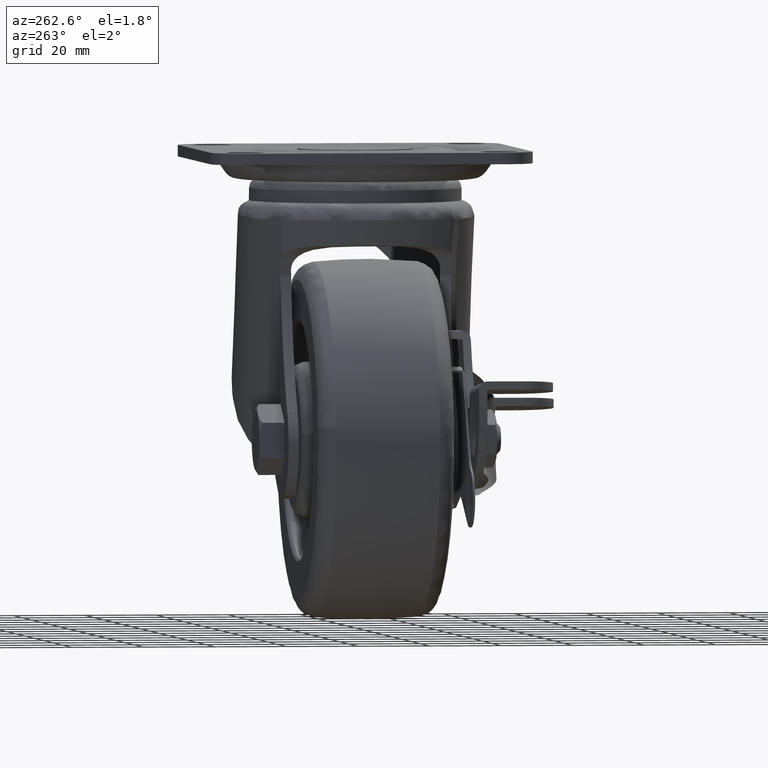
[diagram: clean part render]
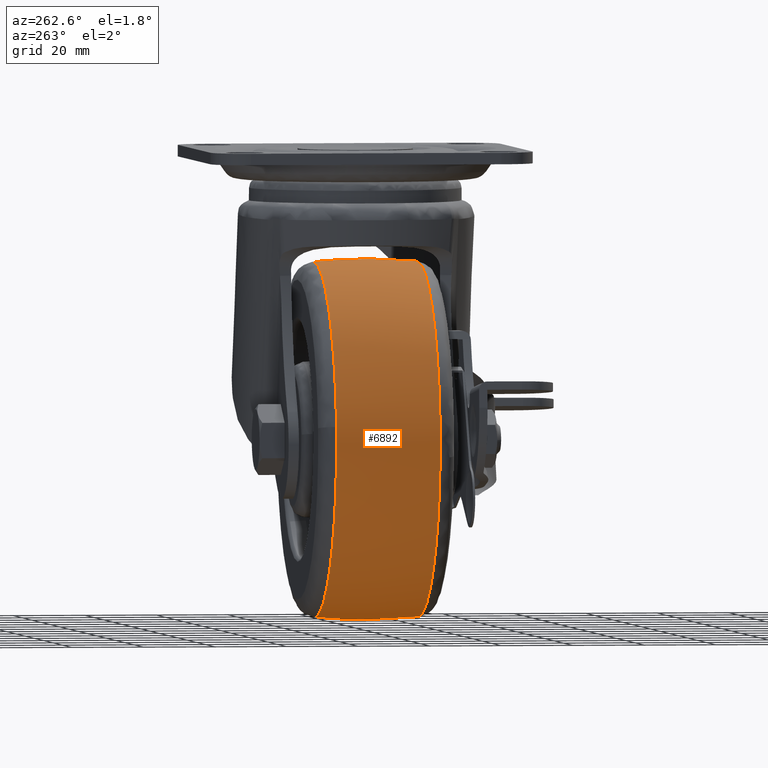
[diagram: same view with one face highlighted and labeled with its STEP entity id]
A machine part, auxiliary view. The second image highlights one B-rep face of the part: STEP entity #6892.
In plain terms, the highlighted face is a freeform B-spline surface patch.
Its self-contained STEP definition (entity closure, byte-faithful):
#6610=CARTESIAN_POINT('',(-71.159154287774825,-14.482748440469010,-83.713747448926227));
#6611=VERTEX_POINT('',#6610);
#6612=CARTESIAN_POINT('',(-22.0,-14.482756657642501,-129.299417237024500));
#6613=VERTEX_POINT('',#6612);
#6614=CARTESIAN_POINT('',(-71.159154287774825,-14.482748440469008,-83.713747448926227));
#6615=CARTESIAN_POINT('',(-67.715552138166373,-14.482752544622015,-129.299417264644350));
#6616=CARTESIAN_POINT('',(-22.0,-14.482756657642501,-129.299417237024500));
#6624=(BOUNDED_CURVE()B_SPLINE_CURVE(2,(#6614,#6615,#6616),.UNSPECIFIED.,.F.,.U.)B_SPLINE_CURVE_WITH_KNOTS((3,3),(0.763129823065427,1.0),.UNSPECIFIED.)CURVE()GEOMETRIC_REPRESENTATION_ITEM()RATIONAL_B_SPLINE_CURVE((0.970850671586314,0.722489325746884,1.0))REPRESENTATION_ITEM(''));
#6625=EDGE_CURVE('',#6611,#6613,#6624,.T.);
#6698=CARTESIAN_POINT('',(-22.0,-14.482756676822291,-30.700982559980680));
#6699=VERTEX_POINT('',#6698);
#6700=CARTESIAN_POINT('',(-22.0,-14.482756676822291,-30.700982559980680));
#6701=CARTESIAN_POINT('',(-71.299217506229184,-14.482752862786034,-30.700982585592836));
#6702=CARTESIAN_POINT('',(-71.299217871855319,-14.482748740175630,-80.000199951734601));
#6703=CARTESIAN_POINT('',(-71.299217885645604,-14.482748584683426,-81.859615085080947));
#6704=CARTESIAN_POINT('',(-71.159154287774825,-14.482748440469008,-83.713747448926227));
#6712=(BOUNDED_CURVE()B_SPLINE_CURVE(2,(#6700,#6701,#6702,#6703,#6704),.UNSPECIFIED.,.F.,.U.)B_SPLINE_CURVE_WITH_KNOTS((3,2,3),(0.500000000000000,0.750000000000000,0.763129823065427),.UNSPECIFIED.)CURVE()GEOMETRIC_REPRESENTATION_ITEM()RATIONAL_B_SPLINE_CURVE((1.0,0.707106781186548,1.0,0.984617455439664,0.970850671586314))REPRESENTATION_ITEM(''));
#6713=EDGE_CURVE('',#6699,#6611,#6712,.T.);
#6768=CARTESIAN_POINT('',(-22.0,14.482743291124690,-129.299418533640990));
#6769=VERTEX_POINT('',#6768);
#6770=CARTESIAN_POINT('',(-22.0,-14.482756657642501,-129.299417237024500));
#6771=CARTESIAN_POINT('',(-22.0,-10.572576409395291,-129.678748565322310));
#6772=CARTESIAN_POINT('',(-22.0,-0.910823884999523,-130.234084034278200));
#6773=CARTESIAN_POINT('',(-22.0,8.767881449281157,-129.853948579695610));
#6774=CARTESIAN_POINT('',(-22.0,14.482743291124690,-129.299418533640990));
#6775=B_SPLINE_CURVE_WITH_KNOTS('',3,(#6770,#6771,#6772,#6773,#6774),.UNSPECIFIED.,.F.,.U.,(4,1,4),(-2.600160E-009,11.785615591849989,29.010704647667030),.UNSPECIFIED.);
#6776=EDGE_CURVE('',#6613,#6769,#6775,.T.);
#6793=CARTESIAN_POINT('',(-22.0,14.482743311180339,-30.700981263449101));
#6794=VERTEX_POINT('',#6793);
#6810=CARTESIAN_POINT('',(-22.0,-14.482756676822291,-30.700982559980680));
#6811=CARTESIAN_POINT('',(-22.0,-9.219080299014600,-30.190273182329129));
#6812=CARTESIAN_POINT('',(-22.0,0.455388175466850,-29.766283093032090));
#6813=CARTESIAN_POINT('',(-22.0,10.121377210091721,-30.277864631789189));
#6814=CARTESIAN_POINT('',(-22.0,14.482743311180339,-30.700981263449101));
#6815=B_SPLINE_CURVE_WITH_KNOTS('',3,(#6810,#6811,#6812,#6813,#6814),.UNSPECIFIED.,.F.,.U.,(4,1,4),(-2.598821E-009,15.865176179971540,29.010704686840590),.UNSPECIFIED.);
#6816=EDGE_CURVE('',#6699,#6794,#6815,.T.);
#6823=CARTESIAN_POINT('',(-22.000000000000004,-15.938127130291793,-30.849327839580901));
#6824=CARTESIAN_POINT('',(-22.0,-7.991684022497925,-30.000178000009612));
#6825=CARTESIAN_POINT('',(-22.0,0.0,-30.000178000009608));
#6826=CARTESIAN_POINT('',(-22.0,7.991676555491410,-30.000178000009608));
#6827=CARTESIAN_POINT('',(-22.0,15.938112322851499,-30.849326257271745));
#6828=CARTESIAN_POINT('',(-71.150872160428605,-15.938127130291791,-30.849327839580909));
#6829=CARTESIAN_POINT('',(-72.000021999999902,-7.991684022497923,-30.000178000009612));
#6830=CARTESIAN_POINT('',(-72.000021999999888,0.0,-30.000178000009619));
#6831=CARTESIAN_POINT('',(-72.000021999999873,7.991676555491409,-30.000178000009623));
#6832=CARTESIAN_POINT('',(-71.150873742737758,15.938112322851486,-30.849326257271745));
#6833=CARTESIAN_POINT('',(-71.150872160428605,-15.938127130291793,-80.000200000009514));
#6834=CARTESIAN_POINT('',(-72.000021999999888,-7.991684022497925,-80.000200000009514));
#6835=CARTESIAN_POINT('',(-72.000021999999888,0.0,-80.000200000009499));
#6836=CARTESIAN_POINT('',(-72.000021999999888,7.991676555491410,-80.000200000009514));
#6837=CARTESIAN_POINT('',(-71.150873742737744,15.938112322851499,-80.000200000009485));
#6838=CARTESIAN_POINT('',(-71.150872160428605,-15.938127130291791,-129.151072160438130));
#6839=CARTESIAN_POINT('',(-72.000021999999902,-7.991684022497923,-130.000222000009420));
#6840=CARTESIAN_POINT('',(-72.000021999999888,0.0,-130.000222000009420));
#6841=CARTESIAN_POINT('',(-72.000021999999873,7.991676555491409,-130.000222000009440));
#6842=CARTESIAN_POINT('',(-71.150873742737758,15.938112322851486,-129.151073742747290));
#6843=CARTESIAN_POINT('',(-22.000000000000004,-15.938127130291793,-129.151072160438160));
#6844=CARTESIAN_POINT('',(-22.0,-7.991684022497925,-130.000222000009420));
#6845=CARTESIAN_POINT('',(-22.0,0.0,-130.000222000009390));
#6846=CARTESIAN_POINT('',(-22.0,7.991676555491410,-130.000222000009360));
#6847=CARTESIAN_POINT('',(-22.0,15.938112322851499,-129.151073742747260));
#6855=(BOUNDED_SURFACE()B_SPLINE_SURFACE(2,2,((#6823,#6828,#6833,#6838,#6843),(#6824,#6829,#6834,#6839,#6844),(#6825,#6830,#6835,#6840,#6845),(#6826,#6831,#6836,#6841,#6846),(#6827,#6832,#6837,#6842,#6847)),.UNSPECIFIED.,.F.,.F.,.U.)B_SPLINE_SURFACE_WITH_KNOTS((3,2,3),(3,2,3),(0.0,16.119354231718550,32.238693571694633),(0.0,82.842748925412337,165.685497850824700),.UNSPECIFIED.)GEOMETRIC_REPRESENTATION_ITEM()RATIONAL_B_SPLINE_SURFACE(((0.980415814770226,0.693258671006561,0.980415814770226,0.693258671006561,0.980415814770226),(0.988757173592591,0.699156902394165,0.988757173592591,0.699156902394165,0.988757173592591),(1.0,0.707106781186548,1.0,0.707106781186548,1.0),(0.988757183979190,0.699156909738600,0.988757183979190,0.699156909738600,0.988757183979190),(0.980415830182430,0.693258681904635,0.980415830182430,0.693258681904635,0.980415830182430)))REPRESENTATION_ITEM('')SURFACE());
#6856=ORIENTED_EDGE('',*,*,#6776,.F.);
#6857=ORIENTED_EDGE('',*,*,#6625,.F.);
#6858=ORIENTED_EDGE('',*,*,#6713,.F.);
#6859=ORIENTED_EDGE('',*,*,#6816,.T.);
#6860=CARTESIAN_POINT('',(-71.050306841295551,14.482743357135680,-75.052445965328531));
#6861=VERTEX_POINT('',#6860);
#6862=CARTESIAN_POINT('',(-22.0,14.482743311180339,-30.700981263449101));
#6863=CARTESIAN_POINT('',(-66.576529835824417,14.482743338668721,-30.700981235226156));
#6864=CARTESIAN_POINT('',(-71.050306841295551,14.482743357135677,-75.052445965328531));
#6872=(BOUNDED_CURVE()B_SPLINE_CURVE(2,(#6862,#6863,#6864),.UNSPECIFIED.,.F.,.U.)B_SPLINE_CURVE_WITH_KNOTS((3,3),(0.500000000000000,0.732576559771719),.UNSPECIFIED.)CURVE()GEOMETRIC_REPRESENTATION_ITEM()RATIONAL_B_SPLINE_CURVE((1.0,0.727519611151608,0.962019633852169))REPRESENTATION_ITEM(''));
#6873=EDGE_CURVE('',#6794,#6861,#6872,.T.);
#6874=ORIENTED_EDGE('',*,*,#6873,.T.);
#6875=CARTESIAN_POINT('',(-71.050306841295551,14.482743357135682,-75.052445965328531));
#6876=CARTESIAN_POINT('',(-71.299217714038747,14.482743355383345,-77.520061818236044));
#6877=CARTESIAN_POINT('',(-71.299217699962981,14.482743353495980,-80.000199844802836));
#6878=CARTESIAN_POINT('',(-71.299217420170535,14.482743315979782,-129.299418508121700));
#6879=CARTESIAN_POINT('',(-22.0,14.482743291124690,-129.299418533640990));
#6887=(BOUNDED_CURVE()B_SPLINE_CURVE(2,(#6875,#6876,#6877,#6878,#6879),.UNSPECIFIED.,.F.,.U.)B_SPLINE_CURVE_WITH_KNOTS((3,2,3),(0.732576559771718,0.750000000000000,1.0),.UNSPECIFIED.)CURVE()GEOMETRIC_REPRESENTATION_ITEM()RATIONAL_B_SPLINE_CURVE((0.962019633852169,0.979587170034939,1.0,0.707106781186548,1.0))REPRESENTATION_ITEM(''));
#6888=EDGE_CURVE('',#6861,#6769,#6887,.T.);
#6889=ORIENTED_EDGE('',*,*,#6888,.T.);
#6890=EDGE_LOOP('',(#6856,#6857,#6858,#6859,#6874,#6889));
#6891=FACE_OUTER_BOUND('',#6890,.T.);
#6892=ADVANCED_FACE('',(#6891),#6855,.T.);